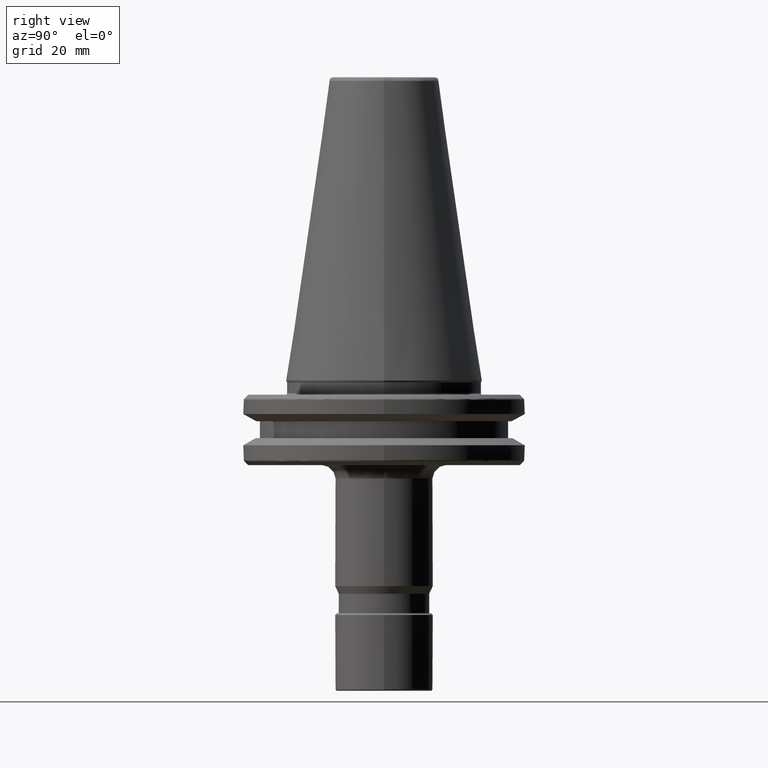
[diagram: clean part render]
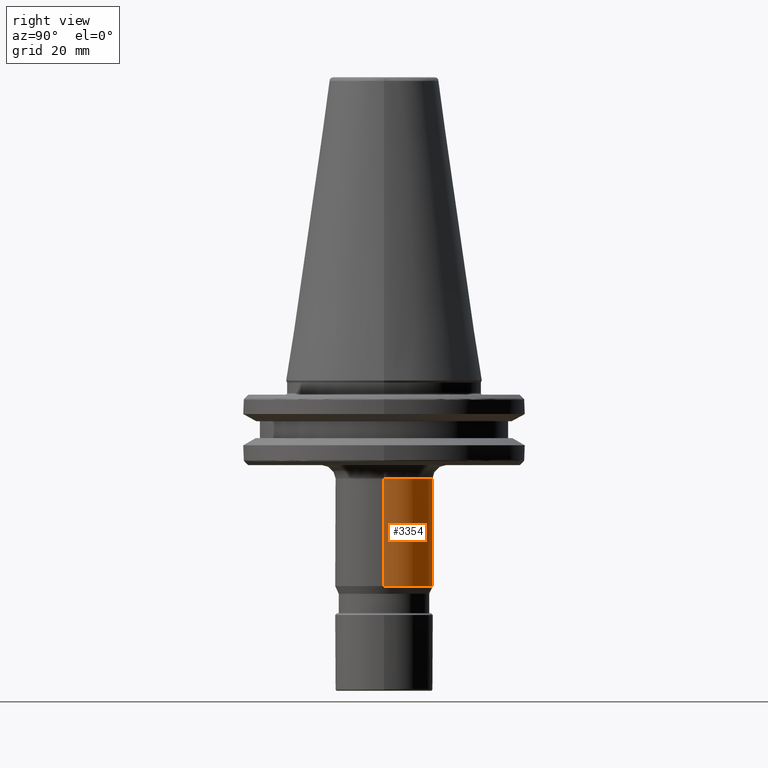
[diagram: same view with one face highlighted and labeled with its STEP entity id]
A machine part, right view. The second image highlights one B-rep face of the part: STEP entity #3354.
In plain terms, the highlighted cylindrical surface (partial cylindrical patch) has radius 11 mm, axis along (0, -0, 1).
Its self-contained STEP definition (entity closure, byte-faithful):
#86 = DIRECTION ( 'NONE',  ( 1.000000000000000000, 0.0000000000000000000, 0.0000000000000000000 ) ) ;
#136 = ORIENTED_EDGE ( 'NONE', *, *, #2678, .T. ) ;
#261 = DIRECTION ( 'NONE',  ( 0.0000000000000000000, 0.0000000000000000000, 1.000000000000000000 ) ) ;
#353 = AXIS2_PLACEMENT_3D ( 'NONE', #2497, #2487, #86 ) ;
#506 = CARTESIAN_POINT ( 'NONE',  ( 1.347111479062088000E-015, 10.99999999999999600, -46.39999999999999900 ) ) ;
#526 = DIRECTION ( 'NONE',  ( 1.000000000000000000, 0.0000000000000000000, 0.0000000000000000000 ) ) ;
#535 = ORIENTED_EDGE ( 'NONE', *, *, #2929, .T. ) ;
#571 = EDGE_CURVE ( 'NONE', #2214, #1995, #2291, .T. ) ;
#649 = EDGE_LOOP ( 'NONE', ( #535, #136, #3370, #985, #3393 ) ) ;
#784 = CARTESIAN_POINT ( 'NONE',  ( 0.0000000000000000000, 0.0000000000000000000, -46.39999999999999900 ) ) ;
#837 = CYLINDRICAL_SURFACE ( 'NONE', #353, 11.00000000000000000 ) ;
#887 = EDGE_CURVE ( 'NONE', #2315, #1995, #2458, .T. ) ;
#982 = DIRECTION ( 'NONE',  ( 0.0000000000000000000, 0.0000000000000000000, 1.000000000000000000 ) ) ;
#985 = ORIENTED_EDGE ( 'NONE', *, *, #887, .F. ) ;
#999 = CARTESIAN_POINT ( 'NONE',  ( -11.00000000000000000, 1.347111479062088400E-015, -46.39999999999999900 ) ) ;
#1005 = FACE_OUTER_BOUND ( 'NONE', #649, .T. ) ;
#1106 = AXIS2_PLACEMENT_3D ( 'NONE', #2038, #2964, #3180 ) ;
#1151 = DIRECTION ( 'NONE',  ( 0.0000000000000000000, -0.0000000000000000000, 1.000000000000000000 ) ) ;
#1212 = CARTESIAN_POINT ( 'NONE',  ( 11.00000000000000000, 0.0000000000000000000, -46.39999999999999900 ) ) ;
#1866 = CIRCLE ( 'NONE', #1900, 11.00000000000000000 ) ;
#1900 = AXIS2_PLACEMENT_3D ( 'NONE', #2111, #261, #526 ) ;
#1995 = VERTEX_POINT ( 'NONE', #3290 ) ;
#2038 = CARTESIAN_POINT ( 'NONE',  ( 0.0000000000000000000, 0.0000000000000000000, -22.10000000000000100 ) ) ;
#2066 = VERTEX_POINT ( 'NONE', #2485 ) ;
#2081 = DIRECTION ( 'NONE',  ( 0.0000000000000000000, -0.0000000000000000000, 1.000000000000000000 ) ) ;
#2111 = CARTESIAN_POINT ( 'NONE',  ( 0.0000000000000000000, 0.0000000000000000000, -46.39999999999999900 ) ) ;
#2114 = LINE ( 'NONE', #1212, #3266 ) ;
#2186 = EDGE_CURVE ( 'NONE', #2066, #2315, #2114, .T. ) ;
#2214 = VERTEX_POINT ( 'NONE', #2722 ) ;
#2291 = LINE ( 'NONE', #999, #3051 ) ;
#2315 = VERTEX_POINT ( 'NONE', #3243 ) ;
#2332 = AXIS2_PLACEMENT_3D ( 'NONE', #784, #982, #3356 ) ;
#2458 = CIRCLE ( 'NONE', #1106, 11.00000000000000000 ) ;
#2485 = CARTESIAN_POINT ( 'NONE',  ( 11.00000000000000000, 0.0000000000000000000, -46.39999999999999900 ) ) ;
#2487 = DIRECTION ( 'NONE',  ( 0.0000000000000000000, -0.0000000000000000000, 1.000000000000000000 ) ) ;
#2497 = CARTESIAN_POINT ( 'NONE',  ( 0.0000000000000000000, 0.0000000000000000000, -46.39999999999999900 ) ) ;
#2630 = CIRCLE ( 'NONE', #2332, 11.00000000000000000 ) ;
#2678 = EDGE_CURVE ( 'NONE', #2721, #2214, #2630, .T. ) ;
#2721 = VERTEX_POINT ( 'NONE', #506 ) ;
#2722 = CARTESIAN_POINT ( 'NONE',  ( -11.00000000000000000, 1.347111479062088400E-015, -46.39999999999999900 ) ) ;
#2929 = EDGE_CURVE ( 'NONE', #2066, #2721, #1866, .T. ) ;
#2964 = DIRECTION ( 'NONE',  ( 0.0000000000000000000, 0.0000000000000000000, 1.000000000000000000 ) ) ;
#3051 = VECTOR ( 'NONE', #2081, 1000.000000000000000 ) ;
#3180 = DIRECTION ( 'NONE',  ( 1.000000000000000000, 0.0000000000000000000, 0.0000000000000000000 ) ) ;
#3243 = CARTESIAN_POINT ( 'NONE',  ( 10.99999999996942700, -4.938649563580315600E-010, -22.10000000000000100 ) ) ;
#3266 = VECTOR ( 'NONE', #1151, 1000.000000000000000 ) ;
#3290 = CARTESIAN_POINT ( 'NONE',  ( -10.99999999996943100, -3.384206570502963900E-009, -22.09999999965454300 ) ) ;
#3354 = ADVANCED_FACE ( 'NONE', ( #1005 ), #837, .T. ) ;
#3356 = DIRECTION ( 'NONE',  ( 1.000000000000000000, 0.0000000000000000000, 0.0000000000000000000 ) ) ;
#3370 = ORIENTED_EDGE ( 'NONE', *, *, #571, .T. ) ;
#3393 = ORIENTED_EDGE ( 'NONE', *, *, #2186, .F. ) ;